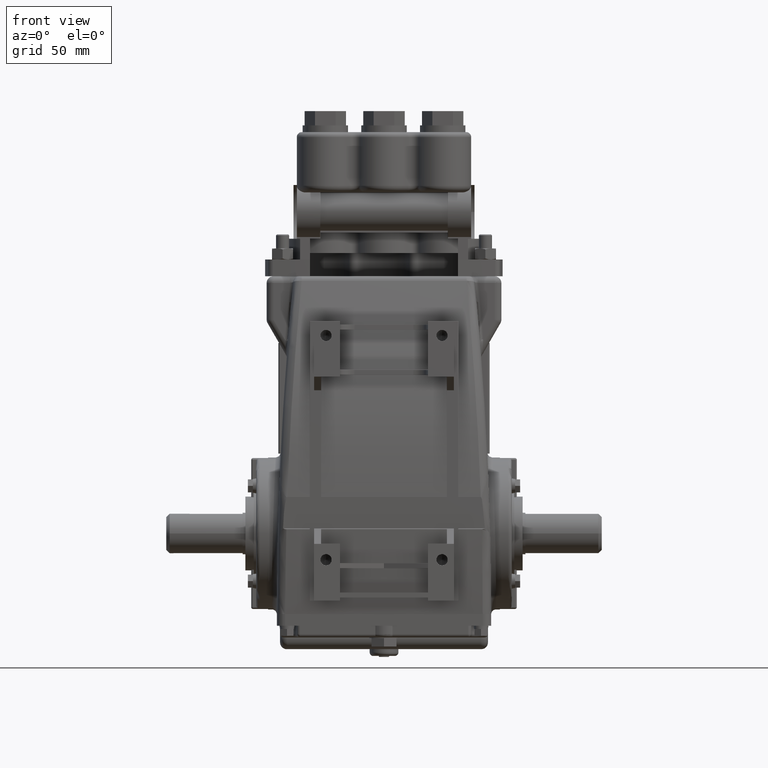
[diagram: clean part render]
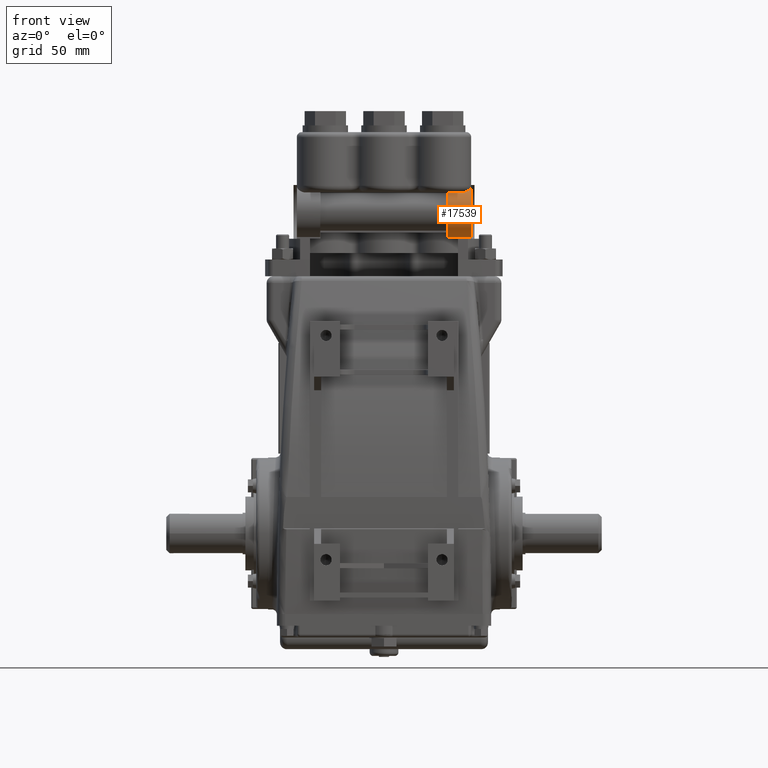
[diagram: same view with one face highlighted and labeled with its STEP entity id]
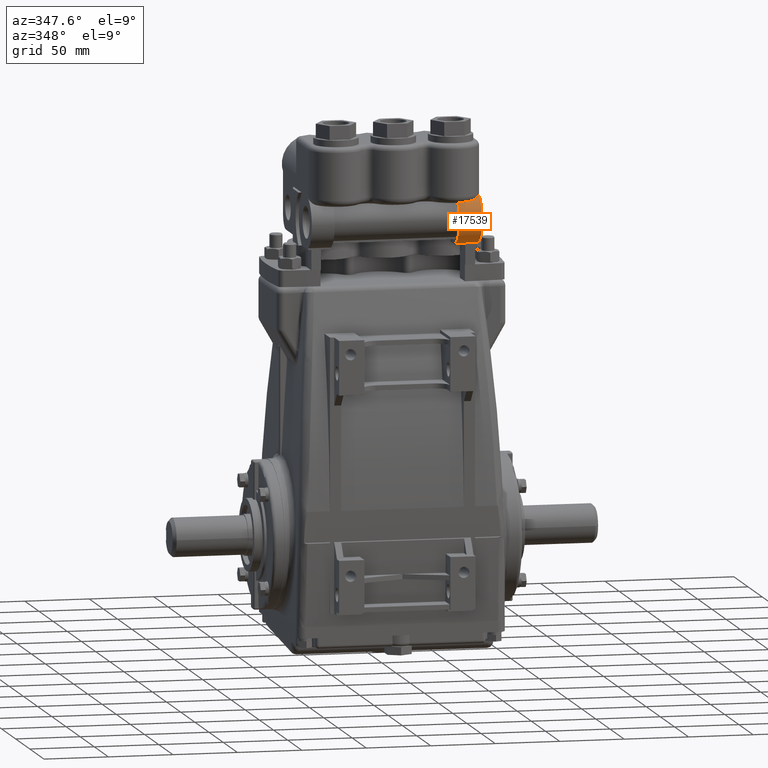
[diagram: same view with one face highlighted and labeled with its STEP entity id]
A machine part, front view. The second image highlights one B-rep face of the part: STEP entity #17539.
A second angle (auxiliary view) of the same face is appended — the face is thin or edge-on in the first view.
In plain terms, the highlighted cylindrical surface (edge-blend (fillet) strip) has radius 20.32 mm, axis along (1, 0, 0).
Its self-contained STEP definition (entity closure, byte-faithful):
#3639 = CARTESIAN_POINT ( 'NONE',  ( 2.341178864964492700, -1.850199092558236600, 2.500000000000000000 ) ) ;
#3640 = CARTESIAN_POINT ( 'NONE',  ( 2.597598615094044200, -1.580000000000000100, 2.669100367107105400 ) ) ;
#3650 = CARTESIAN_POINT ( 'NONE',  ( 2.599999999999999600, -1.580000000000000700, 1.170899632892894200 ) ) ;
#3656 = DIRECTION ( 'NONE',  ( -1.000000000000000000, -0.0000000000000000000, -0.0000000000000000000 ) ) ;
#3657 = VECTOR ( 'NONE', #3656, 39.37007874015748100 ) ;
#3658 = CARTESIAN_POINT ( 'NONE',  ( 1.899999999999998800, -1.580000000000000100, 2.669100367107105400 ) ) ;
#3659 = LINE ( 'NONE', #3658, #3657 ) ;
#3660 = CARTESIAN_POINT ( 'NONE',  ( 1.899999999999998600, -1.580000000000001200, 1.170899632892894200 ) ) ;
#3661 = DIRECTION ( 'NONE',  ( 1.000000000000000000, 0.0000000000000000000, 0.0000000000000000000 ) ) ;
#3662 = VECTOR ( 'NONE', #3661, 39.37007874015748100 ) ;
#3663 = CARTESIAN_POINT ( 'NONE',  ( 1.899999999999998800, -1.580000000000000100, 1.170899632892894000 ) ) ;
#3664 = LINE ( 'NONE', #3663, #3662 ) ;
#3668 = CARTESIAN_POINT ( 'NONE',  ( 2.599999999999999600, -1.299199999999999900, 1.919999999999999700 ) ) ;
#3669 = CIRCLE ( 'NONE', #3699, 0.8000000000000003800 ) ;
#3671 = CARTESIAN_POINT ( 'NONE',  ( 2.341178864964492700, -1.850199092558236600, 2.500000000000000000 ) ) ;
#3672 = CARTESIAN_POINT ( 'NONE',  ( 2.360264329494656800, -1.850199092558236800, 2.500000000000000000 ) ) ;
#3673 = CARTESIAN_POINT ( 'NONE',  ( 2.379242406101592900, -1.847838656777580600, 2.502260227812874000 ) ) ;
#3674 = CARTESIAN_POINT ( 'NONE',  ( 2.406228163502165600, -1.841686026470154700, 2.507976826274195000 ) ) ;
#3675 = CARTESIAN_POINT ( 'NONE',  ( 2.415010112884652800, -1.839193983173785600, 2.510272790262024300 ) ) ;
#3676 = CARTESIAN_POINT ( 'NONE',  ( 2.432179640493586300, -1.833364107564208000, 2.515553670946407000 ) ) ;
#3677 = CARTESIAN_POINT ( 'NONE',  ( 2.440618188828995300, -1.829998257778384700, 2.518562804363123400 ) ) ;
#3678 = CARTESIAN_POINT ( 'NONE',  ( 2.464773472009731000, -1.818891547312848900, 2.528290703991141500 ) ) ;
#3679 = CARTESIAN_POINT ( 'NONE',  ( 2.479479859440448600, -1.810134814604997400, 2.535720598794653400 ) ) ;
#3680 = CARTESIAN_POINT ( 'NONE',  ( 2.499741570583891500, -1.795054500191827400, 2.547829494989193300 ) ) ;
#3681 = CARTESIAN_POINT ( 'NONE',  ( 2.506192123751785700, -1.789700088826818900, 2.552029157734558400 ) ) ;
#3682 = CARTESIAN_POINT ( 'NONE',  ( 2.518503185322584800, -1.778317180727824900, 2.560701116353946800 ) ) ;
#3683 = CARTESIAN_POINT ( 'NONE',  ( 2.524361997909780400, -1.772280525528889400, 2.565177334760671900 ) ) ;
#3684 = CARTESIAN_POINT ( 'NONE',  ( 2.540701791727807200, -1.753571219851881800, 2.578621820367807100 ) ) ;
#3685 = CARTESIAN_POINT ( 'NONE',  ( 2.550107379272739100, -1.740171277482775800, 2.587705529236665700 ) ) ;
#3686 = CARTESIAN_POINT ( 'NONE',  ( 2.566332416904422600, -1.711542843882004200, 2.605754854475933200 ) ) ;
#3687 = CARTESIAN_POINT ( 'NONE',  ( 2.573176794591854200, -1.696180807312849000, 2.614786424211235100 ) ) ;
#3688 = CARTESIAN_POINT ( 'NONE',  ( 2.589633703723353900, -1.648857024820713500, 2.640435778932105600 ) ) ;
#3697 = DIRECTION ( 'NONE',  ( -6.829619984160655100E-016, 1.000000000000000000, 0.0000000000000000000 ) ) ;
#3698 = DIRECTION ( 'NONE',  ( 1.000000000000000000, 4.751039988981326400E-016, 0.0000000000000000000 ) ) ;
#3699 = AXIS2_PLACEMENT_3D ( 'NONE', #3668, #3698, #3697 ) ;
#3700 = CARTESIAN_POINT ( 'NONE',  ( 2.595525521268550000, -1.615366529210358900, 2.655843236503072600 ) ) ;
#3701 = CARTESIAN_POINT ( 'NONE',  ( 2.597598615094044200, -1.580000000000000100, 2.669100367107105400 ) ) ;
#3702 = B_SPLINE_CURVE_WITH_KNOTS ( 'NONE', 3,
 ( #3701, #3700, #3688, #3687, #3686, #3685, #3684, #3683, #3682, #3681, #3680, #3679, #3678, #3677, #3676, #3675, #3674, #3673, #3672, #3671 ),
 .UNSPECIFIED., .F., .F.,
 ( 4, 2, 2, 2, 2, 2, 2, 2, 2, 4 ),
 ( 0.0000000000000000000, 0.002842115937979557000, 0.004263173906969335000, 0.005684231875959113900, 0.006394760860453987800, 0.007105289844948862500, 0.008526347813938670000, 0.009236876798433574200, 0.009947405782928478400, 0.01136846375191828300 ),
 .UNSPECIFIED. ) ;
#3703 = CARTESIAN_POINT ( 'NONE',  ( 2.599999999999999600, -1.580000000000000100, 2.669100367107105000 ) ) ;
#3704 = CARTESIAN_POINT ( 'NONE',  ( 1.899999999999998800, -1.850199092558236600, 2.500000000000000000 ) ) ;
#3706 = DIRECTION ( 'NONE',  ( 1.000000000000000000, 0.0000000000000000000, 0.0000000000000000000 ) ) ;
#3707 = VECTOR ( 'NONE', #3706, 39.37007874015748100 ) ;
#3708 = CARTESIAN_POINT ( 'NONE',  ( 1.899999999999998800, -1.850199092558236600, 2.500000000000000000 ) ) ;
#3709 = LINE ( 'NONE', #3708, #3707 ) ;
#3711 = FACE_OUTER_BOUND ( 'NONE', #17542, .T. ) ;
#3745 = DIRECTION ( 'NONE',  ( 0.0000000000000000000, 0.0000000000000000000, -1.000000000000000000 ) ) ;
#3746 = DIRECTION ( 'NONE',  ( 1.000000000000000000, 0.0000000000000000000, 0.0000000000000000000 ) ) ;
#3747 = CARTESIAN_POINT ( 'NONE',  ( 1.899999999999998800, -1.299199999999999900, 1.919999999999999700 ) ) ;
#3748 = AXIS2_PLACEMENT_3D ( 'NONE', #3747, #3746, #3745 ) ;
#3751 = CYLINDRICAL_SURFACE ( 'NONE', #3748, 0.8000000000000003800 ) ;
#3854 = DIRECTION ( 'NONE',  ( 0.0000000000000000000, 0.0000000000000000000, 1.000000000000000000 ) ) ;
#3855 = DIRECTION ( 'NONE',  ( -1.000000000000000000, -0.0000000000000000000, -0.0000000000000000000 ) ) ;
#3856 = CARTESIAN_POINT ( 'NONE',  ( 1.899999999999998800, -1.299199999999999900, 1.919999999999999700 ) ) ;
#3857 = AXIS2_PLACEMENT_3D ( 'NONE', #3856, #3855, #3854 ) ;
#3858 = CIRCLE ( 'NONE', #3857, 0.8000000000000001600 ) ;
#17487 = EDGE_CURVE ( 'NONE', #17488, #17500, #3664, .T. ) ;
#17488 = VERTEX_POINT ( 'NONE', #3660 ) ;
#17493 = EDGE_CURVE ( 'NONE', #17527, #17510, #3659, .T. ) ;
#17500 = VERTEX_POINT ( 'NONE', #3650 ) ;
#17502 = ORIENTED_EDGE ( 'NONE', *, *, #17493, .T. ) ;
#17510 = VERTEX_POINT ( 'NONE', #3640 ) ;
#17514 = VERTEX_POINT ( 'NONE', #3639 ) ;
#17516 = ORIENTED_EDGE ( 'NONE', *, *, #17517, .F. ) ;
#17517 = EDGE_CURVE ( 'NONE', #17523, #17514, #3709, .T. ) ;
#17523 = VERTEX_POINT ( 'NONE', #3704 ) ;
#17524 = ORIENTED_EDGE ( 'NONE', *, *, #17525, .T. ) ;
#17525 = EDGE_CURVE ( 'NONE', #17510, #17514, #3702, .T. ) ;
#17527 = VERTEX_POINT ( 'NONE', #3703 ) ;
#17531 = ORIENTED_EDGE ( 'NONE', *, *, #17532, .F. ) ;
#17532 = EDGE_CURVE ( 'NONE', #17527, #17500, #3669, .T. ) ;
#17539 = ADVANCED_FACE ( 'NONE', ( #3711 ), #3751, .T. ) ;
#17542 = EDGE_LOOP ( 'NONE', ( #17531, #17502, #17524, #17516, #17620, #17623 ) ) ;
#17618 = EDGE_CURVE ( 'NONE', #17488, #17523, #3858, .T. ) ;
#17620 = ORIENTED_EDGE ( 'NONE', *, *, #17618, .F. ) ;
#17623 = ORIENTED_EDGE ( 'NONE', *, *, #17487, .T. ) ;